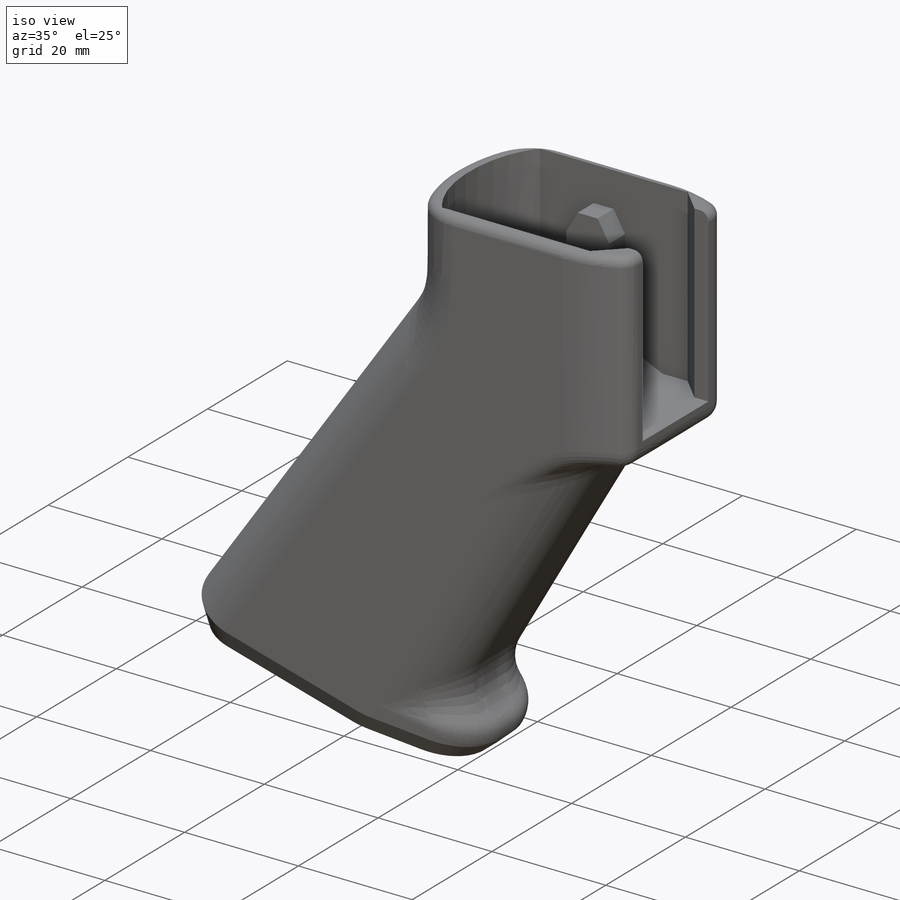
[diagram: iso view]
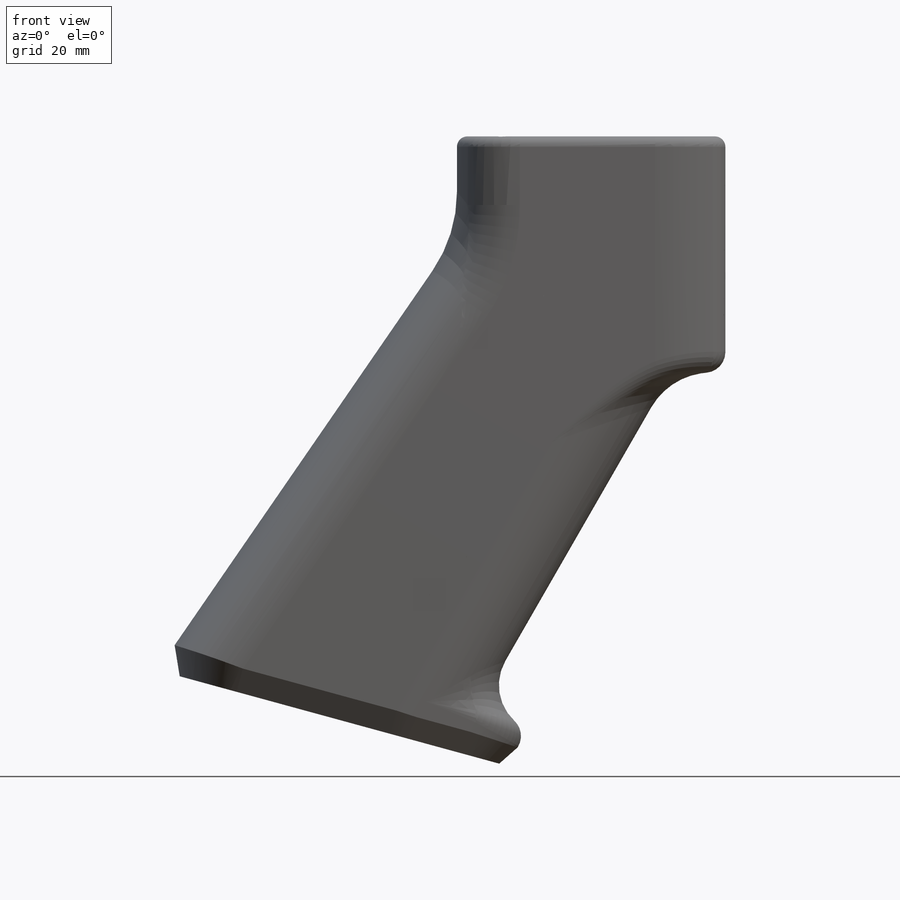
[diagram: front view]
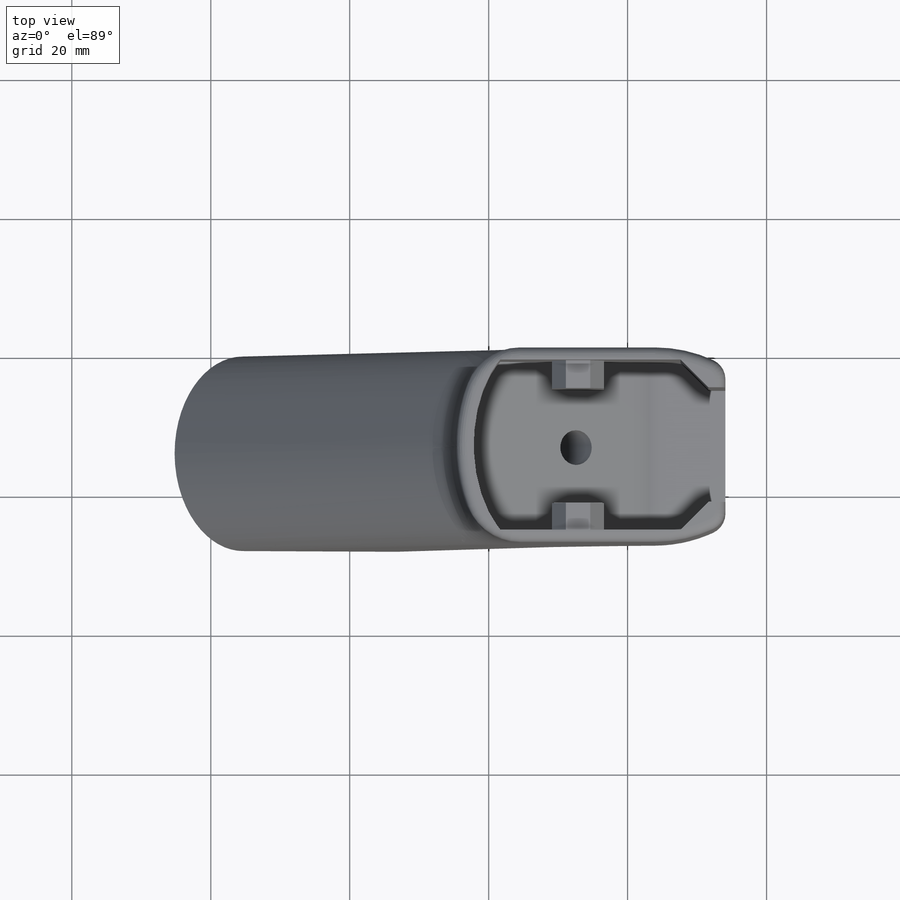
[diagram: top view]
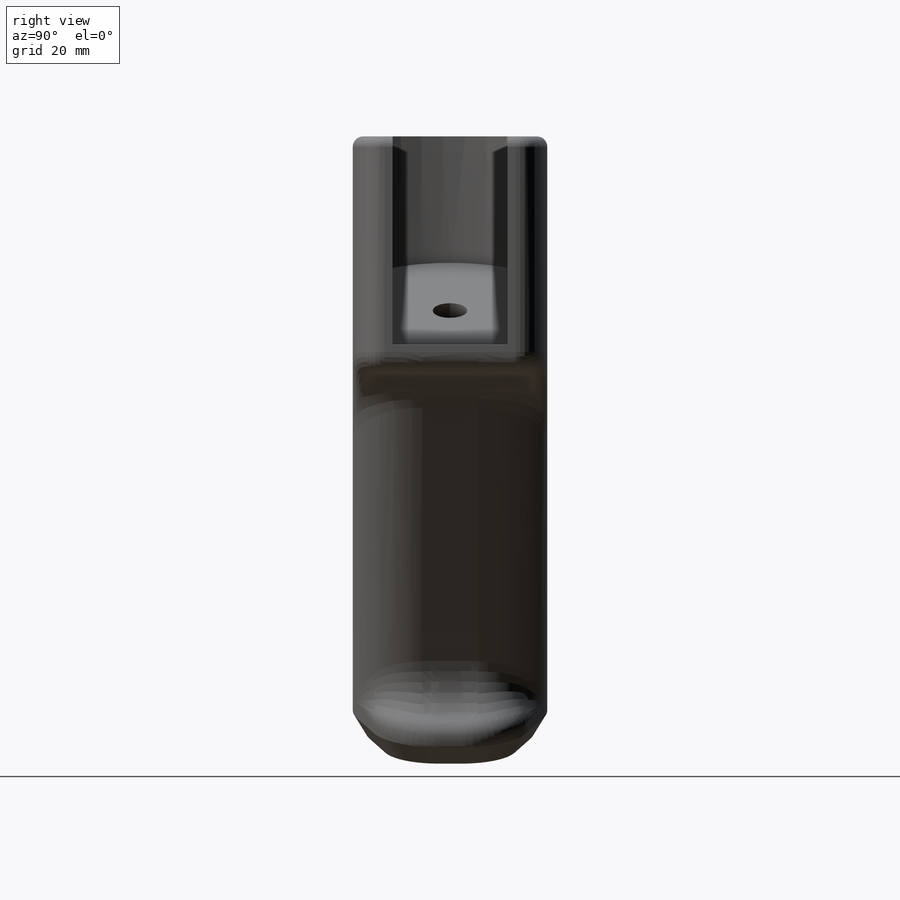
[diagram: right view]
SOLIDWORKS PART (.sldprt)
format: sldprt  version: not decoded by parser v0  size: 1,609,728 bytes
history: native  units: mm
features: sketch x28, fillet x14, extrude x11, cut_extrude x8, chamfer x4, sweep x2, material x1, shell x1 (+11 scaffold rows collapsed)
feature tree (80):
  scaffold x11  (default folders/planes/origin — collapsed)
  material  "Material <not specified>"
  sketch  "Sketch5"  dims[c1.D1=5.0mm c1.D10=5.0mm c1.D2=~88.399394mm c1.D3=~17.229303mm c1.D4=~21.562637mm c1.D5=~22.415549mm c1.D6=~11.989034mm c1.D7=~12.871248mm c1.D8=~14.047979mm c1.D9=~16.989034mm c2.D10=~18.381313mm c2.D11=~19.699836mm c2.D12=~50.476239mm c2.D13=~51.794762mm c2.D14=~54.594025mm c2.D3=~17.229303mm c2.D4=~21.562637mm c2.D6=~11.989034mm c2.D7=~12.871248mm c2.D8=~14.047979mm c2.D9=~19.699836mm c3.D10=~50.476239mm c3.D11=~87.126125mm c3.D12=~95.679363mm c3.D13=~98.515529mm c3.D14=~116.356526mm c3.D15=~118.862088mm c3.D16=~121.356526mm c3.D17=~159.092183mm c3.D18=~161.928349mm c3.D19=~166.751366mm c3.D20=~170.702502mm c3.D21=~173.196939mm c3.D22=~175.525519mm c4.D11=~87.126125mm c4.D10=~54.334851mm c5.D10=~4.63109deg c6.D10=~72.891788mm c6.D3=~2.885627mm c6.D4=~3.73854mm c6.D5=~8.071873mm c6.D6=~37.29021mm c6.D7=~38.172425mm c6.D8=~39.349155mm c6.D9=~42.29021mm c7.D10=~43.682489mm c7.D11=~45.001012mm c7.D12=~75.777416mm c7.D13=~77.095938mm c7.D14=~79.895201mm c7.D4=~3.73854mm c7.D5=~8.071873mm c7.D6=~37.29021mm c7.D7=~38.172425mm c7.D8=~39.349155mm c7.D9=~45.001012mm c8.D10=~75.777416mm c8.D11=~57.126125mm c8.D12=~65.679363mm c8.D13=~68.515529mm c8.D14=~86.356526mm c8.D15=~88.862088mm c8.D16=~91.356526mm c8.D17=~129.092183mm c8.D18=~131.928349mm c8.D19=~136.751366mm c8.D20=~140.702502mm c8.D21=~143.196939mm c8.D22=~145.525519mm c9.D11=~57.126125mm c9.D3=~34.404583mm c9.D4=~72.891788mm c9.D5=~40.796862mm c9.D6=~83.576377mm c9.D7=~66.248986mm]
  extrude  "Boss-Extrude2"  Depth=28mm
  sketch  "3DSketch1"  dims[D1=90.0deg]
  sketch  "Sketch9"  dims[D1=14.0mm]
  cut_extrude  "Cut-Extrude3"  [1 undecoded]
  sketch  "3DSketch2"  dims[D1=90.0deg]
  sketch  "Sketch10"  dims[D1=10.0mm]
  cut_extrude  "Cut-Extrude4"  [1 undecoded]
  sketch  "Sketch11"  dims[c1.D3=4.0mm c1.D4=4.0mm c1.D2=8.0mm c2.D3=5.0mm c2.D4=5.0mm c2.D1=0.0mm c2.D2=4.0mm]
  sketch  "Sketch12"  dims[D1=6.0mm]
  sketch  "3DSketch3"  dims[D1=40.0mm]
  sweep  "Sweep2"
  fillet  "Fillet10"  Radius=10mm
  fillet  "Fillet11"  Radius=7mm
  fillet  "Fillet12"  Radius=3mm
  chamfer  "Chamfer2"  Distance=2mm Angle=60deg
  fillet  "Fillet13"  Radius=6mm
  sketch  "Sketch20"  dims[D4=3.0mm D1=0.0mm D2=1.5mm D3=0.25mm]
  extrude  "Boss-Extrude3"  Depth=34mm
  sketch  "Sketch22"  dims[D1=0.0mm]
  cut_extrude  "Cut-Extrude5"  Depth=30mm
  sketch  "Sketch23"
  cut_extrude  "Cut-Extrude6"  Depth=40mm
  sketch  "Sketch24"  dims[D1=0.0mm]
  extrude  "Boss-Extrude4"  [1 undecoded]
  fillet  "Fillet15"  Radius=10mm
  fillet  "Fillet17"  Radius=20mm
  fillet  "Fillet18"  Radius=20mm
  fillet  "Fillet19"  Radius=3mm
  fillet  "Fillet20"  Radius=3mm
  fillet  "Fillet21"  Radius=8mm
  fillet  "Fillet22"  Radius=1.5mm
  chamfer  "Chamfer3"  Distance=2mm Angle=60deg
  fillet  "Fillet23"  Radius=10mm
  sketch  "3DSketch4"  dims[D1=14.0mm]
  sketch  "Sketch26"  dims[c1.D1=8.2mm c1.D2=~45.005591mm c2.D2=25.0deg]
  extrude  "Boss-Extrude6"  [1 undecoded]
  sketch  "Sketch27"  dims[D1=0.0mm D2=0.0mm]
  extrude  "Boss-Extrude7"  [1 undecoded]
  sketch  "Sketch28"  dims[D1=~3.69994mm]
  cut_extrude  "Cut-Extrude7"  Depth=46mm
  sketch  "3DSketch6"  dims[D1=80.0mm]
  sketch  "Sketch29"  dims[D1=~4.786742mm]
  cut_extrude  "Cut-Extrude8"  [1 undecoded]
  shell  "Shell1"  Thickness=2mm
  sketch  "Sketch30"
  extrude  "Boss-Extrude10"  Depth=1.5mm
  sketch  "Sketch31"  dims[D1=1.5mm D2=1.5mm D3=10.0mm]
  extrude  "Boss-Extrude11"  [1 undecoded]
  sketch  "Sketch33"  dims[D1=0.0mm D2=0.0mm]
  sweep  "Cut-Sweep1"
  sketch  "Sketch34"
  cut_extrude  "Cut-Extrude9"  [1 undecoded]
  fillet  "Fillet24"  Radius=3mm
  sketch  "Sketch36"  dims[D1=0.0mm]
  extrude  "Boss-Extrude13"  [1 undecoded]
  sketch  "Sketch37"  dims[D1=0.0mm]
  extrude  "Boss-Extrude14"  [1 undecoded]
  fillet  "Fillet27"  Radius=3mm
  sketch  "Sketch40"
  cut_extrude  "Cut-Extrude10"  [1 undecoded]
  chamfer  "Chamfer7"  Distance=2mm Angle=60deg
  sketch  "3DSketch7"  dims[D1=10.0mm]
  sketch  "Sketch43"
  extrude  "Boss-Extrude16"  [1 undecoded]
  chamfer  "Chamfer8"  Distance=10mm Angle=60deg
  sketch  "Sketch45"
  extrude  "Boss-Extrude24"  [1 undecoded]
decode coverage: 47 of 68 modeling features carry decoded parameters
note: ~ marks probable driven/reference dimensions
note: 13 parameter values undecoded
summary: no parameter record found for 13 features
note: suppression state not decoded; provenance and decode notes live in map.json
